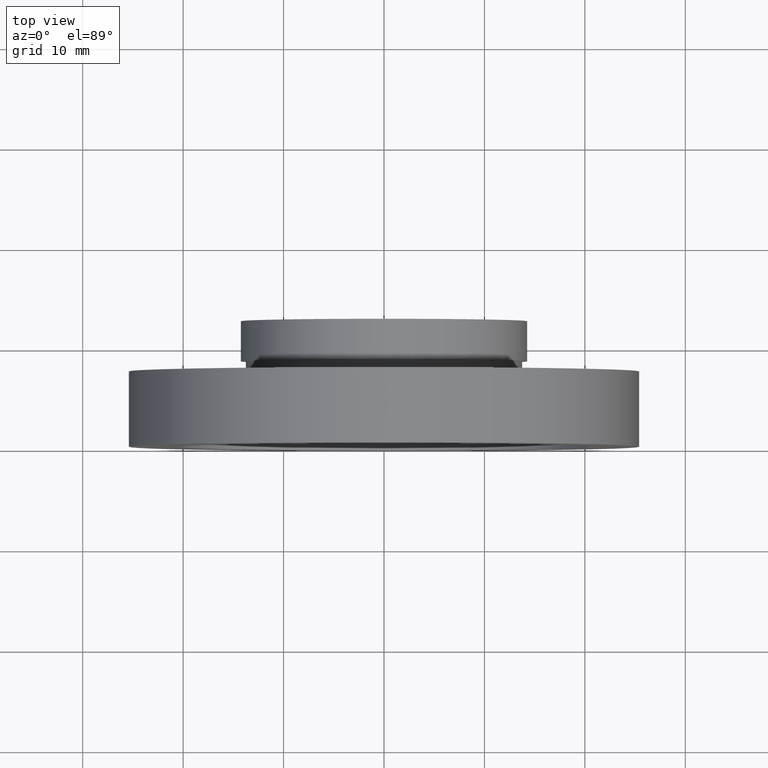
[diagram: clean part render]
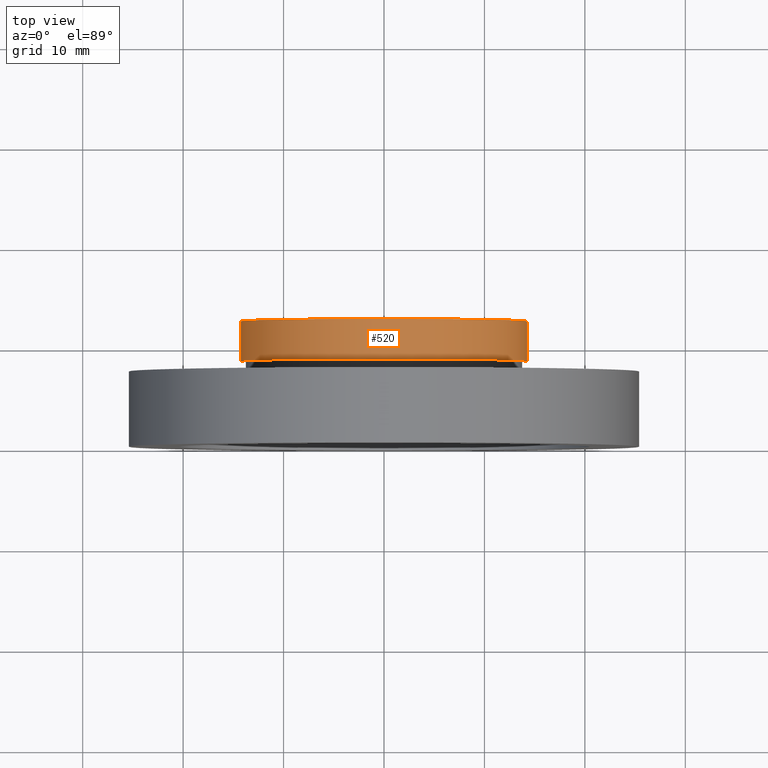
[diagram: same view with one face highlighted and labeled with its STEP entity id]
A machine part, top view. The second image highlights one B-rep face of the part: STEP entity #520.
In plain terms, the highlighted cylindrical surface (partial cylindrical patch) has radius 14.25 mm, axis along (-0, 1, -0).
Its self-contained STEP definition (entity closure, byte-faithful):
#18 = VERTEX_POINT ( 'NONE', #373 ) ;
#19 = DIRECTION ( 'NONE',  ( -1.000000000000000000, -2.434699615406044700E-016, 0.0000000000000000000 ) ) ;
#43 = CARTESIAN_POINT ( 'NONE',  ( 1.026991039163387700E-015, 8.499999999999998200, 0.0000000000000000000 ) ) ;
#59 = AXIS2_PLACEMENT_3D ( 'NONE', #397, #226, #19 ) ;
#62 = AXIS2_PLACEMENT_3D ( 'NONE', #43, #338, #472 ) ;
#78 = CARTESIAN_POINT ( 'NONE',  ( -14.25000000000000200, 16.88601823708207300, 0.0000000000000000000 ) ) ;
#79 = DIRECTION ( 'NONE',  ( -1.224646799147351000E-016, 1.000000000000000000, -0.0000000000000000000 ) ) ;
#89 = ORIENTED_EDGE ( 'NONE', *, *, #465, .F. ) ;
#104 = ORIENTED_EDGE ( 'NONE', *, *, #527, .T. ) ;
#117 = CARTESIAN_POINT ( 'NONE',  ( -14.25000000000000200, 12.49999999999999500, 0.0000000000000000000 ) ) ;
#122 = EDGE_LOOP ( 'NONE', ( #104, #287, #89, #260 ) ) ;
#148 = EDGE_CURVE ( 'NONE', #183, #213, #271, .T. ) ;
#162 = AXIS2_PLACEMENT_3D ( 'NONE', #372, #423, #370 ) ;
#172 = FACE_OUTER_BOUND ( 'NONE', #122, .T. ) ;
#183 = VERTEX_POINT ( 'NONE', #246 ) ;
#213 = VERTEX_POINT ( 'NONE', #565 ) ;
#226 = DIRECTION ( 'NONE',  ( -1.224646799147351000E-016, 1.000000000000000000, -0.0000000000000000000 ) ) ;
#246 = CARTESIAN_POINT ( 'NONE',  ( 14.25000000000000500, 8.500000000000000000, 1.745121688784979000E-015 ) ) ;
#258 = LINE ( 'NONE', #78, #387 ) ;
#260 = ORIENTED_EDGE ( 'NONE', *, *, #474, .F. ) ;
#271 = LINE ( 'NONE', #399, #514 ) ;
#272 = CIRCLE ( 'NONE', #162, 14.25000000000000200 ) ;
#287 = ORIENTED_EDGE ( 'NONE', *, *, #148, .T. ) ;
#338 = DIRECTION ( 'NONE',  ( -1.224646799147351000E-016, 1.000000000000000000, -0.0000000000000000000 ) ) ;
#370 = DIRECTION ( 'NONE',  ( -1.000000000000000000, -1.217349807703022400E-016, 0.0000000000000000000 ) ) ;
#372 = CARTESIAN_POINT ( 'NONE',  ( 5.371323195044474300E-016, 12.49999999999999600, 0.0000000000000000000 ) ) ;
#373 = CARTESIAN_POINT ( 'NONE',  ( -14.25000000000000000, 8.499999999999996400, 0.0000000000000000000 ) ) ;
#387 = VECTOR ( 'NONE', #79, 1000.000000000000000 ) ;
#397 = CARTESIAN_POINT ( 'NONE',  ( 0.0000000000000000000, 16.88601823708207700, 0.0000000000000000000 ) ) ;
#399 = CARTESIAN_POINT ( 'NONE',  ( 14.25000000000000200, 16.88601823708208000, 1.745121688784978600E-015 ) ) ;
#423 = DIRECTION ( 'NONE',  ( -1.224646799147351000E-016, 1.000000000000000000, -0.0000000000000000000 ) ) ;
#442 = CYLINDRICAL_SURFACE ( 'NONE', #59, 14.25000000000000200 ) ;
#455 = VERTEX_POINT ( 'NONE', #117 ) ;
#465 = EDGE_CURVE ( 'NONE', #455, #213, #272, .T. ) ;
#472 = DIRECTION ( 'NONE',  ( -1.000000000000000000, -1.217349807703022400E-016, 0.0000000000000000000 ) ) ;
#474 = EDGE_CURVE ( 'NONE', #18, #455, #258, .T. ) ;
#514 = VECTOR ( 'NONE', #575, 1000.000000000000000 ) ;
#520 = ADVANCED_FACE ( 'NONE', ( #172 ), #442, .T. ) ;
#527 = EDGE_CURVE ( 'NONE', #18, #183, #578, .T. ) ;
#565 = CARTESIAN_POINT ( 'NONE',  ( 14.25000000000000200, 12.49999999999999800, 1.745121688784978600E-015 ) ) ;
#575 = DIRECTION ( 'NONE',  ( -1.224646799147351000E-016, 1.000000000000000000, -0.0000000000000000000 ) ) ;
#578 = CIRCLE ( 'NONE', #62, 14.25000000000000200 ) ;